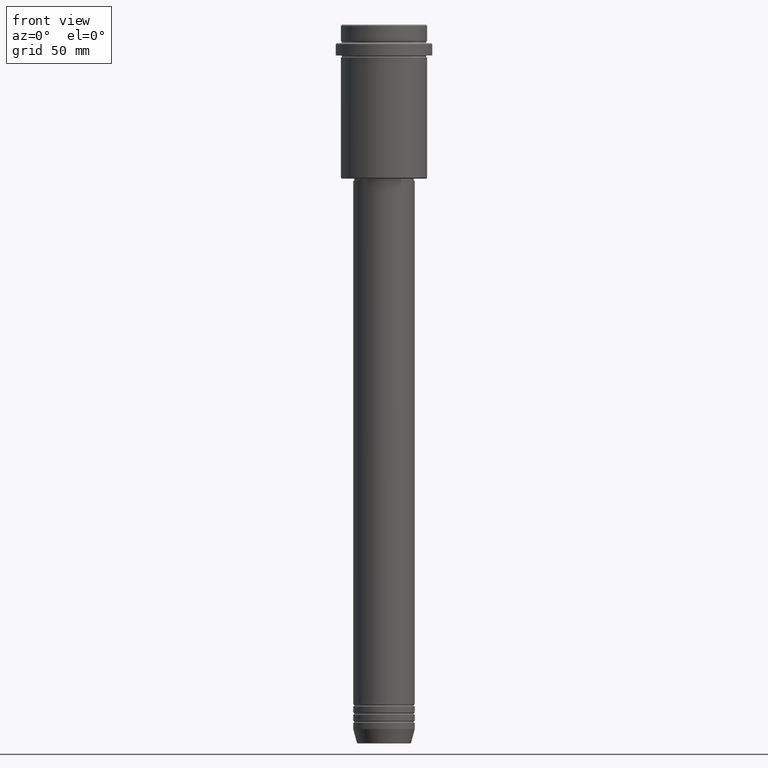
[diagram: clean part render]
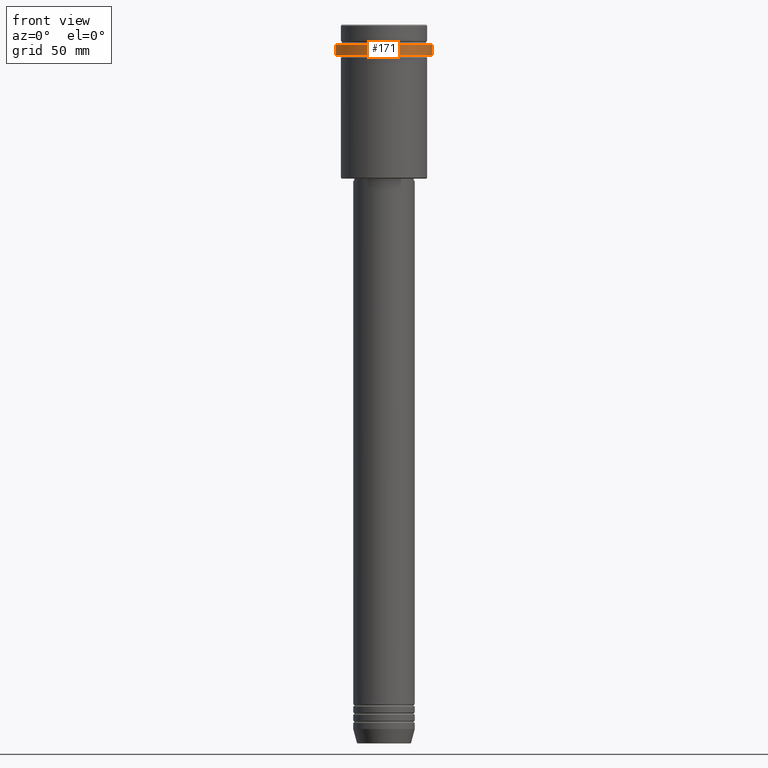
[diagram: same view with one face highlighted and labeled with its STEP entity id]
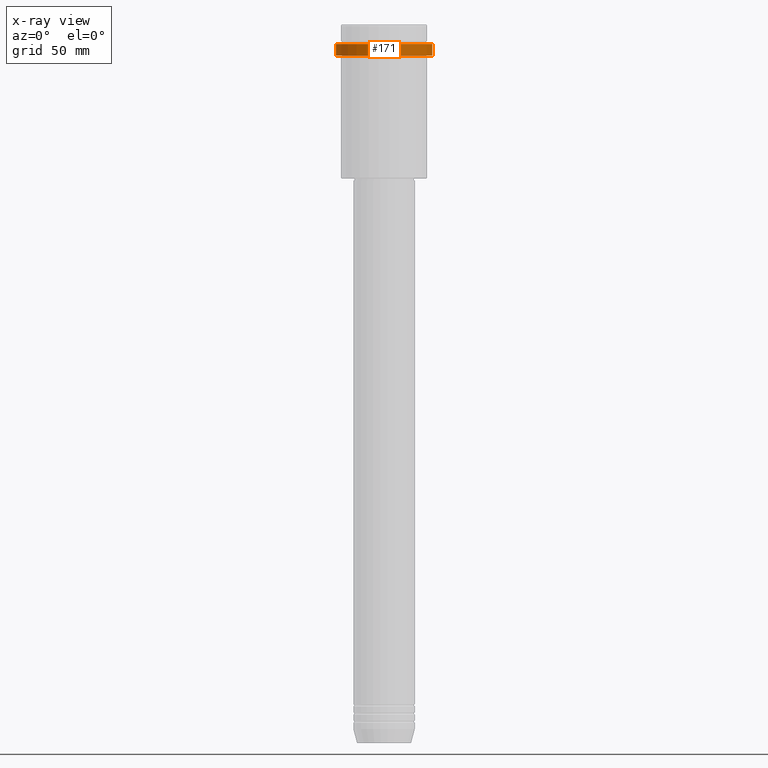
[diagram: x-ray of the same camera — body ghosted, the highlighted face saturated]
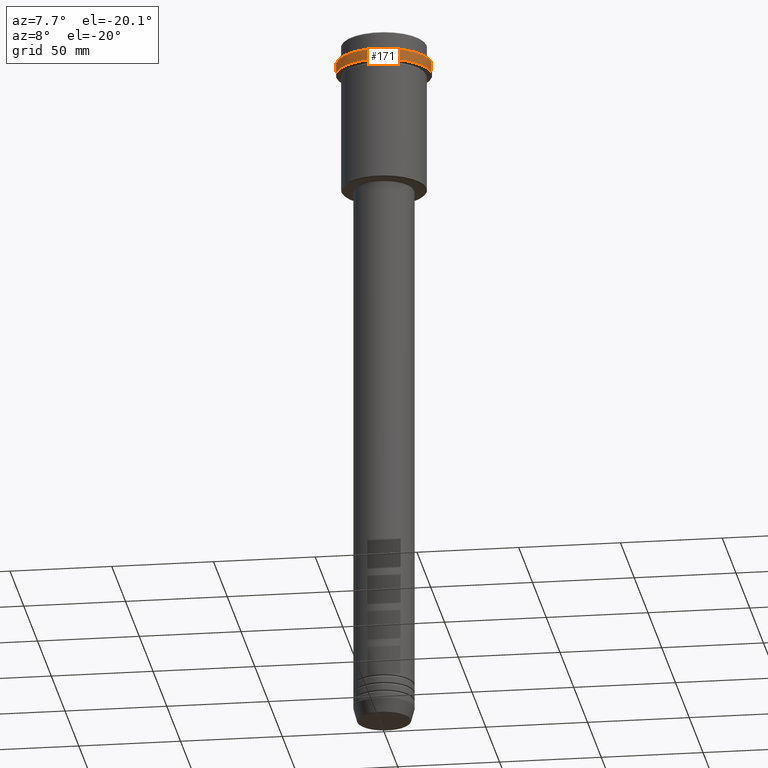
[diagram: same view with one face highlighted and labeled with its STEP entity id]
A machine part, front view. The second image highlights one B-rep face of the part: STEP entity #171.
The next image is the same camera in x-ray: the body ghosted, the highlighted face saturated — about 0% of this face is hidden behind the body in this view.
A second angle (auxiliary view) of the same face is appended — the face is thin or edge-on in the first view.
In plain terms, the highlighted cylindrical surface (partial cylindrical patch) has radius 23.5 mm, axis along (-0, -0, 1).
Its self-contained STEP definition (entity closure, byte-faithful):
#7 = ORIENTED_EDGE ( 'NONE', *, *, #784, .F. ) ;
#31 = AXIS2_PLACEMENT_3D ( 'NONE', #391, #1248, #1270 ) ;
#59 = LINE ( 'NONE', #491, #834 ) ;
#75 = CARTESIAN_POINT ( 'NONE',  ( 0.000000000000000000, 0.000000000000000000, 0.000000000000000000 ) ) ;
#165 = FACE_OUTER_BOUND ( 'NONE', #1361, .T. ) ;
#171 = ADVANCED_FACE ( 'NONE', ( #165 ), #942, .T. ) ;
#178 = VECTOR ( 'NONE', #320, 1000.000000000000000 ) ;
#211 = CARTESIAN_POINT ( 'NONE',  ( -23.50000000000000711, 2.877919977996281109E-15, -15.00000000000000178 ) ) ;
#233 = EDGE_CURVE ( 'NONE', #1359, #783, #657, .T. ) ;
#241 = ORIENTED_EDGE ( 'NONE', *, *, #1342, .T. ) ;
#278 = DIRECTION ( 'NONE',  ( -0.000000000000000000, -0.000000000000000000, 1.000000000000000000 ) ) ;
#320 = DIRECTION ( 'NONE',  ( -0.000000000000000000, -0.000000000000000000, 1.000000000000000000 ) ) ;
#391 = CARTESIAN_POINT ( 'NONE',  ( 0.000000000000000000, 0.000000000000000000, -9.500000000000001776 ) ) ;
#483 = CARTESIAN_POINT ( 'NONE',  ( 23.50000000000000355, 0.000000000000000000, -15.00000000000000178 ) ) ;
#491 = CARTESIAN_POINT ( 'NONE',  ( -23.50000000000000000, 2.877919977996280320E-15, 0.000000000000000000 ) ) ;
#543 = CIRCLE ( 'NONE', #31, 23.50000000000000000 ) ;
#556 = DIRECTION ( 'NONE',  ( -0.000000000000000000, -0.000000000000000000, 1.000000000000000000 ) ) ;
#657 = CIRCLE ( 'NONE', #1145, 23.50000000000000355 ) ;
#754 = EDGE_CURVE ( 'NONE', #1347, #930, #543, .T. ) ;
#783 = VERTEX_POINT ( 'NONE', #483 ) ;
#784 = EDGE_CURVE ( 'NONE', #1359, #930, #59, .T. ) ;
#830 = AXIS2_PLACEMENT_3D ( 'NONE', #75, #556, #868 ) ;
#834 = VECTOR ( 'NONE', #278, 1000.000000000000000 ) ;
#866 = ORIENTED_EDGE ( 'NONE', *, *, #233, .T. ) ;
#868 = DIRECTION ( 'NONE',  ( 1.000000000000000000, 0.000000000000000000, 0.000000000000000000 ) ) ;
#930 = VERTEX_POINT ( 'NONE', #1137 ) ;
#942 = CYLINDRICAL_SURFACE ( 'NONE', #830, 23.50000000000000000 ) ;
#1093 = DIRECTION ( 'NONE',  ( -0.000000000000000000, -0.000000000000000000, 1.000000000000000000 ) ) ;
#1137 = CARTESIAN_POINT ( 'NONE',  ( -23.50000000000000000, 2.877919977996280320E-15, -9.500000000000001776 ) ) ;
#1145 = AXIS2_PLACEMENT_3D ( 'NONE', #1309, #1093, #1315 ) ;
#1177 = LINE ( 'NONE', #1308, #178 ) ;
#1201 = CARTESIAN_POINT ( 'NONE',  ( 23.50000000000000000, 0.000000000000000000, -9.500000000000001776 ) ) ;
#1229 = ORIENTED_EDGE ( 'NONE', *, *, #754, .T. ) ;
#1248 = DIRECTION ( 'NONE',  ( 0.000000000000000000, 0.000000000000000000, -1.000000000000000000 ) ) ;
#1270 = DIRECTION ( 'NONE',  ( 1.000000000000000000, 0.000000000000000000, 0.000000000000000000 ) ) ;
#1308 = CARTESIAN_POINT ( 'NONE',  ( 23.50000000000000000, 0.000000000000000000, 0.000000000000000000 ) ) ;
#1309 = CARTESIAN_POINT ( 'NONE',  ( 0.000000000000000000, 0.000000000000000000, -15.00000000000000178 ) ) ;
#1315 = DIRECTION ( 'NONE',  ( 1.000000000000000000, 0.000000000000000000, 0.000000000000000000 ) ) ;
#1342 = EDGE_CURVE ( 'NONE', #783, #1347, #1177, .T. ) ;
#1347 = VERTEX_POINT ( 'NONE', #1201 ) ;
#1359 = VERTEX_POINT ( 'NONE', #211 ) ;
#1361 = EDGE_LOOP ( 'NONE', ( #7, #866, #241, #1229 ) ) ;